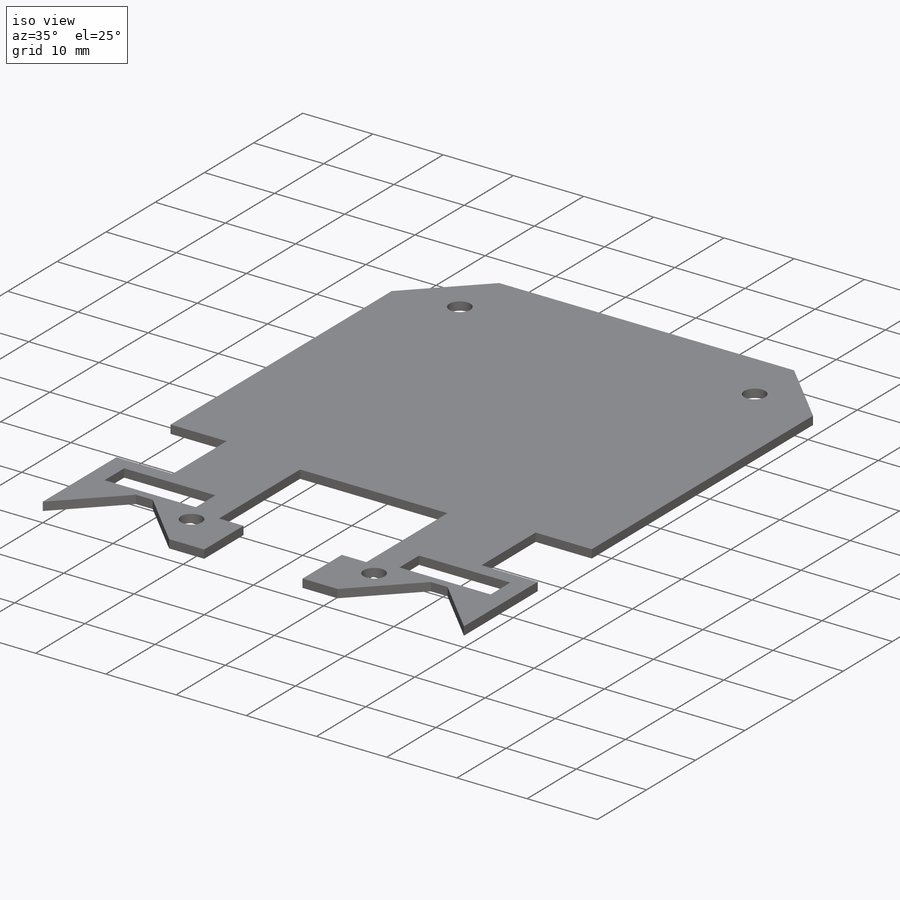
[diagram: iso view]
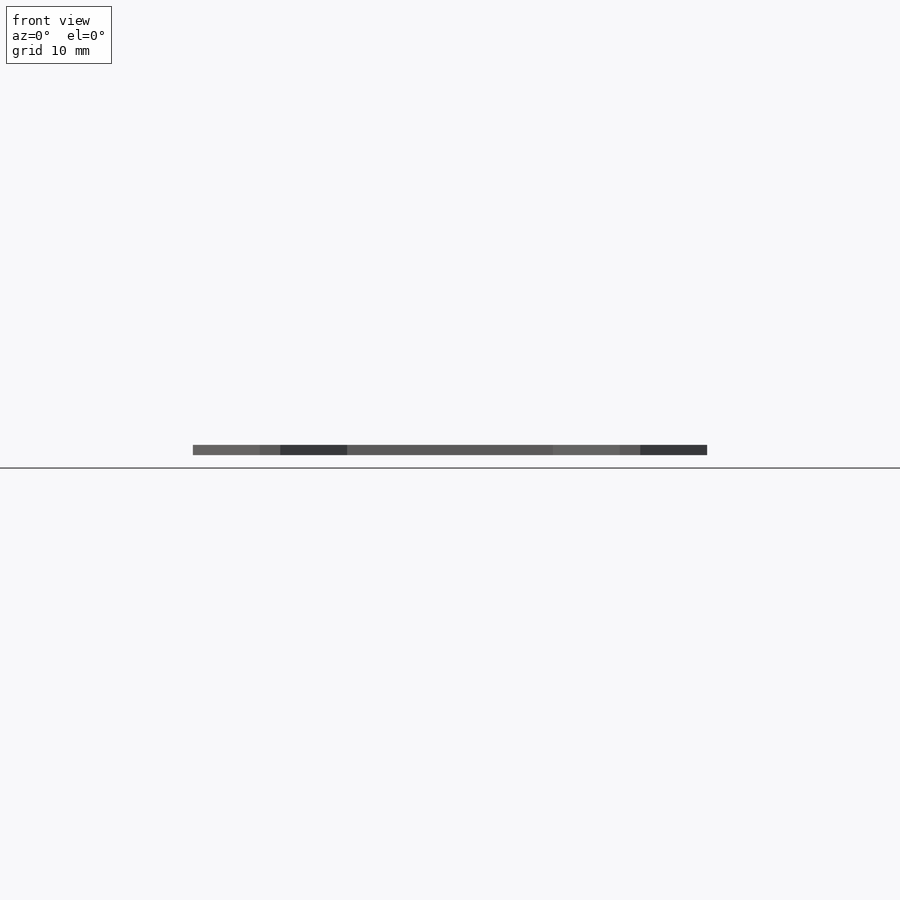
[diagram: front view]
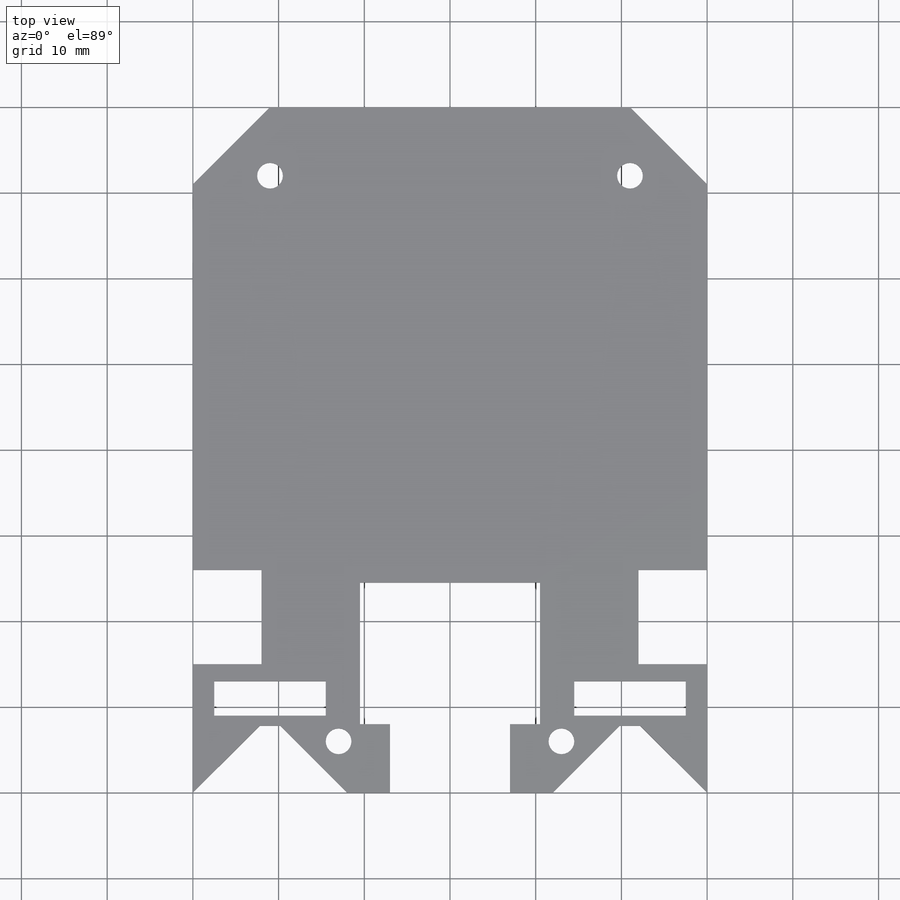
[diagram: top view]
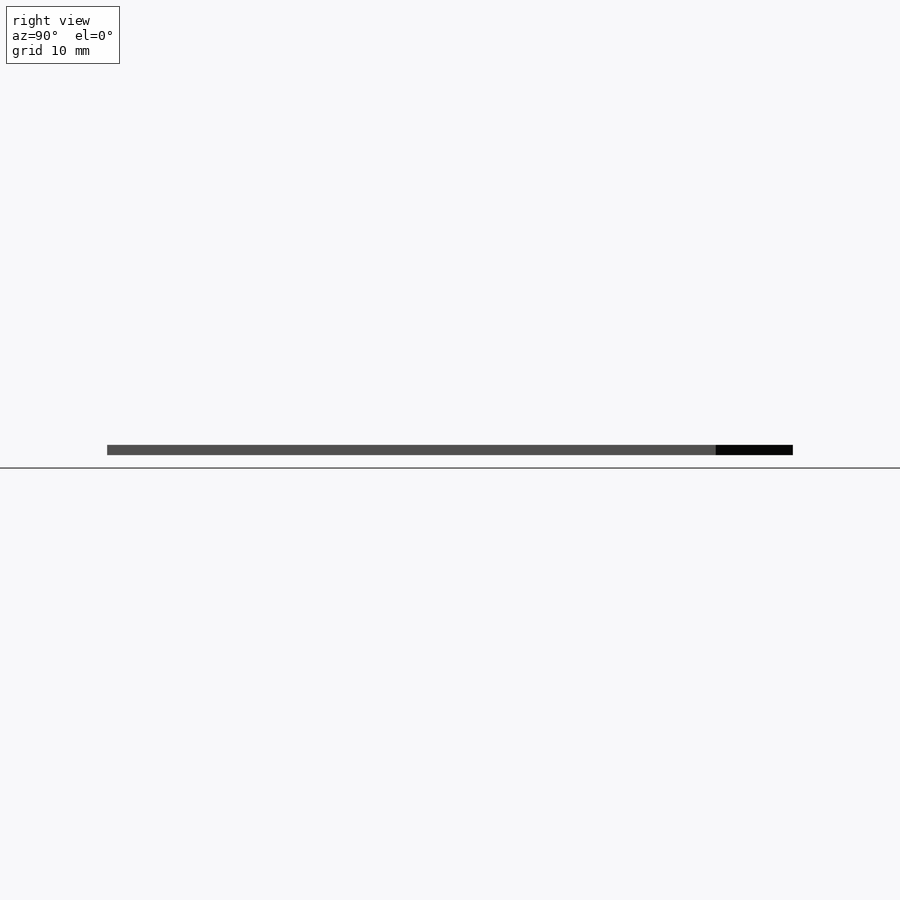
[diagram: right view]
SOLIDWORKS PART (.sldprt)
format: sldprt  version: not decoded by parser v0  size: 494,592 bytes
history: native  units: mm
features: sketch x6, cut_extrude x3, material x1, extrude x1, chamfer x1, hole x1 (+15 scaffold rows collapsed)
feature tree (28):
  scaffold x15  (default folders/planes/origin — collapsed)
  material  "Material <not specified>"
  sketch  "Sketch1"  dims[c1.D1=60.0mm c1.D2=10.0mm c1.D3=10.0mm c1.D4=80.0mm c1.D5=10.0mm c1.D6=10.0mm c2.D2=15.0mm c2.D3=11.0mm c2.D5=8.0mm c2.D6=11.0mm c2.D7=8.0mm c2.D8=15.0mm c2.D9=8.0mm c2.D10=8.0mm c2.D11=4.0mm c2.D12=4.0mm c2.D13=5.0mm c2.D14=3.0mm c2.D15=3.0mm c3.D6=11.0mm]
  extrude  "Extrude1"  Depth=1.2mm
  chamfer  "Chamfer1"  Distance=9mm Angle=45deg
  hole  "Ø3.0 (3) Diameter Hole1"  Diameter=3mm Depth=10mm
  sketch  "3DSketch1"  dims[c1.D1=~48.539489mm c1.D4=46.0mm c1.D2=~4.149983mm c1.D6=10.0mm c1.D3=17.0mm c2.D4=~56.746387mm c2.D8=61.0mm c2.D5=9.0mm c2.D6=~56.894793mm c3.D4=61.0mm c3.D7=9.0mm c4.D4=~10.222556mm c4.D8=~10.222556mm c4.D2=6.0mm c4.D6=66.0mm c4.D1=17.0mm]
  sketch  "Sketch3"  dims[hole-wizard template sketch: 50 standard entries collapsed; hole parameters above]
  sketch  "Sketch4"  dims[D1=21.0mm D2=16.5mm D3=14.0mm D4=8.0mm]
  cut_extrude  "Cut-Extrude1"  Depth=10mm
  sketch  "Sketch5"  dims[c1.D1=4.0mm c1.D2=11.0mm c2.D1=1.0mm c2.D2=2.0mm c2.D3=4.0mm c2.D4=1.0mm c3.D1=9.0mm c3.D2=2.5mm c3.D4=13.0mm]
  cut_extrude  "Cut-Extrude2"  Depth=10mm
  sketch  "Sketch6"  dims[c1.D1=~7.784457mm c2.D1=45.0deg c2.D2=1.2mm c2.D3=18.0mm c2.D4=2.4mm]
  cut_extrude  "Cut-Extrude3"  Depth=10mm
decode coverage: 12 of 12 modeling features carry decoded parameters
note: ~ marks probable driven/reference dimensions
note: suppression state not decoded; provenance and decode notes live in map.json
